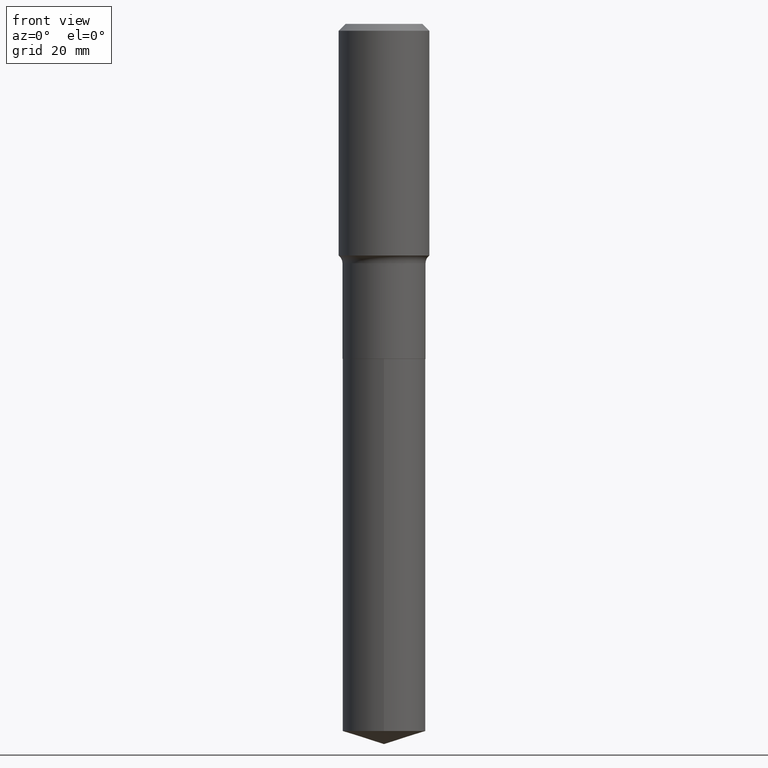
[diagram: clean part render]
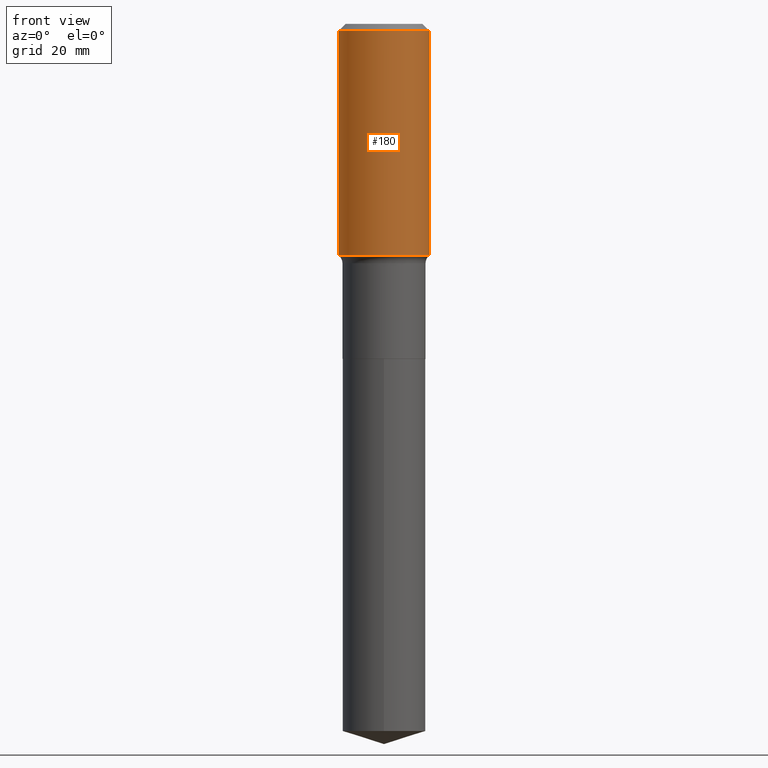
[diagram: same view with one face highlighted and labeled with its STEP entity id]
A machine part, front view. The second image highlights one B-rep face of the part: STEP entity #180.
In plain terms, the highlighted cylindrical surface (partial cylindrical patch) has radius 9.0005 mm, axis along (-0, 0, 1).
Its self-contained STEP definition (entity closure, byte-faithful):
#1 = ORIENTED_EDGE ( 'NONE', *, *, #176, .T. ) ;
#34 = CARTESIAN_POINT ( 'NONE',  ( -0.3543500000000002759, -3.801676273909247311E-15, -1.809972285336354902 ) ) ;
#40 = CARTESIAN_POINT ( 'NONE',  ( -0.3543500000000001648, 2.517808184165916180E-15, -1.743024649231826627E-29 ) ) ;
#52 = VECTOR ( 'NONE', #262, 39.37007874015748143 ) ;
#63 = CARTESIAN_POINT ( 'NONE',  ( 0.3543500000000001648, -2.474412824838129483E-15, 1.727873240503290590E-29 ) ) ;
#67 = CARTESIAN_POINT ( 'NONE',  ( 0.3543499999999999983, -2.659993786700990565E-15, -0.05315250000000039388 ) ) ;
#72 = AXIS2_PLACEMENT_3D ( 'NONE', #327, #213, #418 ) ;
#109 = LINE ( 'NONE', #63, #231 ) ;
#129 = VERTEX_POINT ( 'NONE', #34 ) ;
#141 = AXIS2_PLACEMENT_3D ( 'NONE', #149, #224, #296 ) ;
#149 = CARTESIAN_POINT ( 'NONE',  ( 1.299827807207564373E-30, -1.855809618628616735E-16, -0.05315250000000039388 ) ) ;
#164 = EDGE_CURVE ( 'NONE', #129, #238, #379, .T. ) ;
#169 = CYLINDRICAL_SURFACE ( 'NONE', #275, 0.3543500000000001648 ) ;
#176 = EDGE_CURVE ( 'NONE', #238, #252, #109, .T. ) ;
#180 = ADVANCED_FACE ( 'NONE', ( #486 ), #169, .T. ) ;
#211 = CARTESIAN_POINT ( 'NONE',  ( 0.000000000000000000, 0.000000000000000000, 0.000000000000000000 ) ) ;
#213 = DIRECTION ( 'NONE',  ( -2.445468806185136597E-29, 3.491481338843145583E-15, 1.000000000000000000 ) ) ;
#219 = LINE ( 'NONE', #40, #52 ) ;
#224 = DIRECTION ( 'NONE',  ( -2.445468806185136597E-29, 3.491481338843145583E-15, 1.000000000000000000 ) ) ;
#231 = VECTOR ( 'NONE', #481, 39.37007874015748143 ) ;
#238 = VERTEX_POINT ( 'NONE', #330 ) ;
#246 = ORIENTED_EDGE ( 'NONE', *, *, #164, .T. ) ;
#252 = VERTEX_POINT ( 'NONE', #67 ) ;
#254 = DIRECTION ( 'NONE',  ( -2.445468806185136597E-29, 3.491481338843145583E-15, 1.000000000000000000 ) ) ;
#262 = DIRECTION ( 'NONE',  ( -2.445468806185136877E-29, 3.491481338843145188E-15, 1.000000000000000000 ) ) ;
#266 = EDGE_CURVE ( 'NONE', #129, #458, #219, .T. ) ;
#275 = AXIS2_PLACEMENT_3D ( 'NONE', #211, #254, #376 ) ;
#296 = DIRECTION ( 'NONE',  ( 1.000000000000000000, -6.982962677686266711E-15, 0.000000000000000000 ) ) ;
#303 = CARTESIAN_POINT ( 'NONE',  ( -0.3543499999999999983, -7.347245258030969939E-16, -0.05315250000000039388 ) ) ;
#327 = CARTESIAN_POINT ( 'NONE',  ( 4.426230763849679048E-29, -6.319484458075164280E-15, -1.809972285336354902 ) ) ;
#330 = CARTESIAN_POINT ( 'NONE',  ( 0.3543500000000002759, -8.793897282913294946E-15, -1.809972285336354902 ) ) ;
#340 = EDGE_LOOP ( 'NONE', ( #461, #246, #1, #429 ) ) ;
#359 = CIRCLE ( 'NONE', #141, 0.3543499999999999983 ) ;
#376 = DIRECTION ( 'NONE',  ( 1.000000000000000000, -6.982962677686265922E-15, 4.876176775795935793E-29 ) ) ;
#379 = CIRCLE ( 'NONE', #72, 0.3543500000000002204 ) ;
#418 = DIRECTION ( 'NONE',  ( 1.000000000000000000, -6.982962677686266711E-15, 0.000000000000000000 ) ) ;
#429 = ORIENTED_EDGE ( 'NONE', *, *, #433, .F. ) ;
#433 = EDGE_CURVE ( 'NONE', #458, #252, #359, .T. ) ;
#458 = VERTEX_POINT ( 'NONE', #303 ) ;
#461 = ORIENTED_EDGE ( 'NONE', *, *, #266, .F. ) ;
#481 = DIRECTION ( 'NONE',  ( -2.445468806185136877E-29, 3.491481338843145188E-15, 1.000000000000000000 ) ) ;
#486 = FACE_OUTER_BOUND ( 'NONE', #340, .T. ) ;